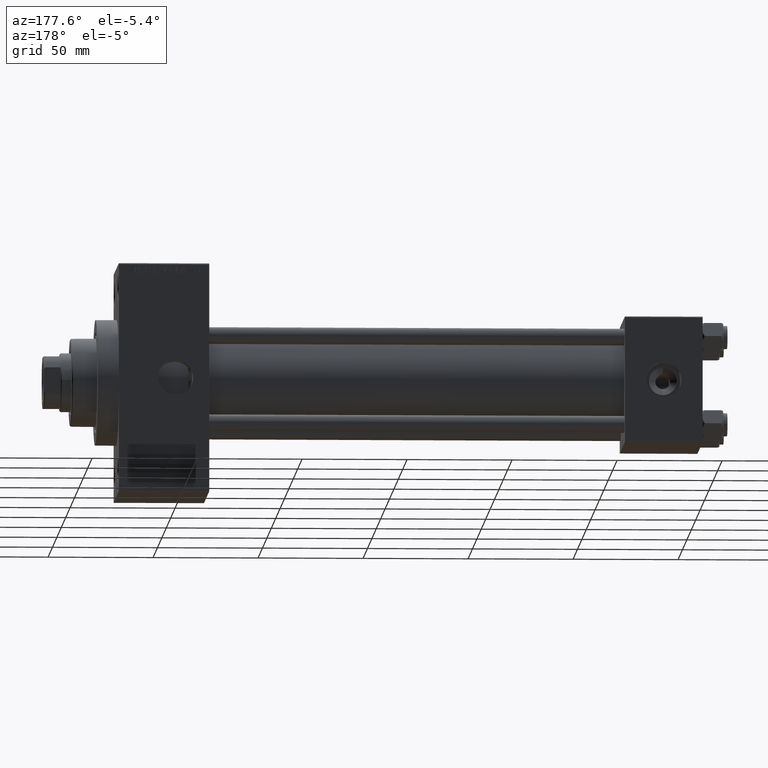
[diagram: clean part render]
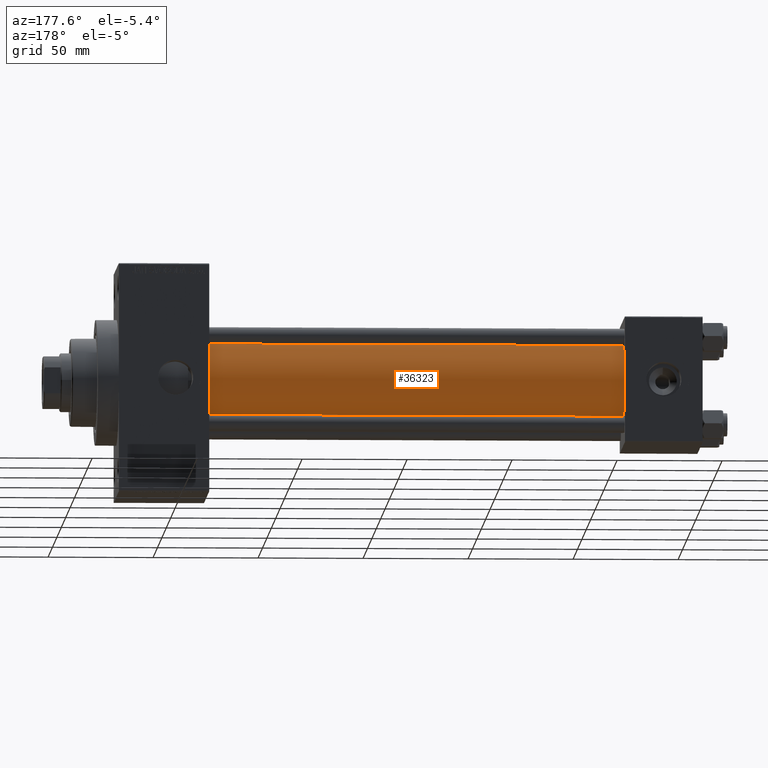
[diagram: same view with one face highlighted and labeled with its STEP entity id]
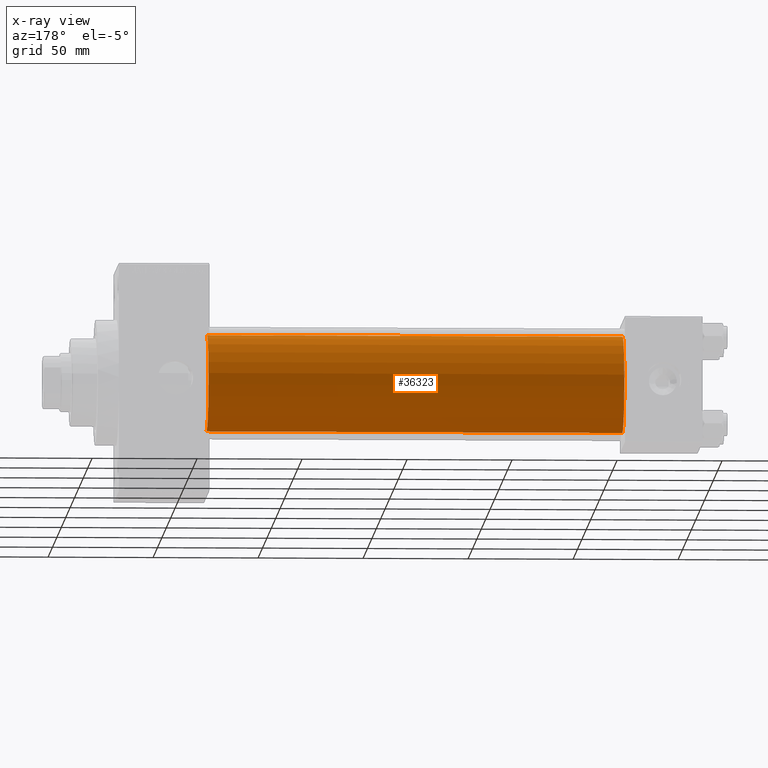
[diagram: x-ray of the same camera — body ghosted, the highlighted face saturated]
A machine part, auxiliary view. The second image highlights one B-rep face of the part: STEP entity #36323.
The next image is the same camera in x-ray: the body ghosted, the highlighted face saturated — about 0% of this face is hidden behind the body in this view.
In plain terms, the highlighted cylindrical surface (partial cylindrical patch) has radius 23 mm, axis along (-1, -0, -0).
Its self-contained STEP definition (entity closure, byte-faithful):
#1224 = DIRECTION ( 'NONE',  ( 1.000000000000000000, -0.000000000000000000, 0.000000000000000000 ) ) ;
#2092 = ORIENTED_EDGE ( 'NONE', *, *, #7354, .T. ) ;
#4458 = VERTEX_POINT ( 'NONE', #30671 ) ;
#5847 = AXIS2_PLACEMENT_3D ( 'NONE', #22066, #7387, #36708 ) ;
#7354 = EDGE_CURVE ( 'NONE', #4458, #23016, #39186, .T. ) ;
#7387 = DIRECTION ( 'NONE',  ( -1.000000000000000000, -0.000000000000000000, -0.000000000000000000 ) ) ;
#8051 = ORIENTED_EDGE ( 'NONE', *, *, #14409, .F. ) ;
#8673 = CARTESIAN_POINT ( 'NONE',  ( 37.00000000000000711, -2.602085213965210642E-15, 0.000000000000000000 ) ) ;
#9039 = EDGE_CURVE ( 'NONE', #11382, #4458, #36737, .T. ) ;
#9229 = AXIS2_PLACEMENT_3D ( 'NONE', #8673, #1224, #16363 ) ;
#9369 = EDGE_CURVE ( 'NONE', #11382, #11961, #30805, .T. ) ;
#9762 = CARTESIAN_POINT ( 'NONE',  ( 235.0000000000000284, 2.146024240737016609E-16, -23.00000000000000000 ) ) ;
#11382 = VERTEX_POINT ( 'NONE', #9762 ) ;
#11655 = EDGE_LOOP ( 'NONE', ( #21252, #17550, #2092, #8051 ) ) ;
#11961 = VERTEX_POINT ( 'NONE', #27167 ) ;
#13600 = LINE ( 'NONE', #21045, #34671 ) ;
#14371 = CYLINDRICAL_SURFACE ( 'NONE', #5847, 23.00000000000000000 ) ;
#14409 = EDGE_CURVE ( 'NONE', #11961, #23016, #13600, .T. ) ;
#16363 = DIRECTION ( 'NONE',  ( 0.000000000000000000, 0.000000000000000000, 1.000000000000000000 ) ) ;
#17550 = ORIENTED_EDGE ( 'NONE', *, *, #9039, .T. ) ;
#20589 = CARTESIAN_POINT ( 'NONE',  ( 37.00000000000000711, -2.602085213965210642E-15, 23.00000000000000000 ) ) ;
#21045 = CARTESIAN_POINT ( 'NONE',  ( 235.0000000000000284, -2.602085213965210642E-15, 23.00000000000000000 ) ) ;
#21252 = ORIENTED_EDGE ( 'NONE', *, *, #9369, .F. ) ;
#21574 = DIRECTION ( 'NONE',  ( 0.000000000000000000, 0.000000000000000000, -1.000000000000000000 ) ) ;
#22066 = CARTESIAN_POINT ( 'NONE',  ( 235.0000000000000284, -2.602085213965210642E-15, 0.000000000000000000 ) ) ;
#23016 = VERTEX_POINT ( 'NONE', #20589 ) ;
#24418 = DIRECTION ( 'NONE',  ( -1.000000000000000000, -0.000000000000000000, -0.000000000000000000 ) ) ;
#25169 = CARTESIAN_POINT ( 'NONE',  ( 235.0000000000000284, -2.602085213965210642E-15, 0.000000000000000000 ) ) ;
#25462 = DIRECTION ( 'NONE',  ( -1.000000000000000000, -0.000000000000000000, -0.000000000000000000 ) ) ;
#25667 = FACE_OUTER_BOUND ( 'NONE', #11655, .T. ) ;
#25693 = CARTESIAN_POINT ( 'NONE',  ( 235.0000000000000284, 2.146024240737016609E-16, -23.00000000000000000 ) ) ;
#27167 = CARTESIAN_POINT ( 'NONE',  ( 235.0000000000000284, -2.602085213965210642E-15, 23.00000000000000000 ) ) ;
#30671 = CARTESIAN_POINT ( 'NONE',  ( 37.00000000000000711, 2.146024240737016609E-16, -23.00000000000000000 ) ) ;
#30805 = CIRCLE ( 'NONE', #31561, 23.00000000000000000 ) ;
#31561 = AXIS2_PLACEMENT_3D ( 'NONE', #25169, #32595, #21574 ) ;
#32595 = DIRECTION ( 'NONE',  ( 1.000000000000000000, 0.000000000000000000, 0.000000000000000000 ) ) ;
#34671 = VECTOR ( 'NONE', #24418, 1000.000000000000000 ) ;
#36323 = ADVANCED_FACE ( 'NONE', ( #25667 ), #14371, .T. ) ;
#36708 = DIRECTION ( 'NONE',  ( 0.000000000000000000, 0.000000000000000000, 1.000000000000000000 ) ) ;
#36737 = LINE ( 'NONE', #25693, #38488 ) ;
#38488 = VECTOR ( 'NONE', #25462, 1000.000000000000000 ) ;
#39186 = CIRCLE ( 'NONE', #9229, 23.00000000000000000 ) ;